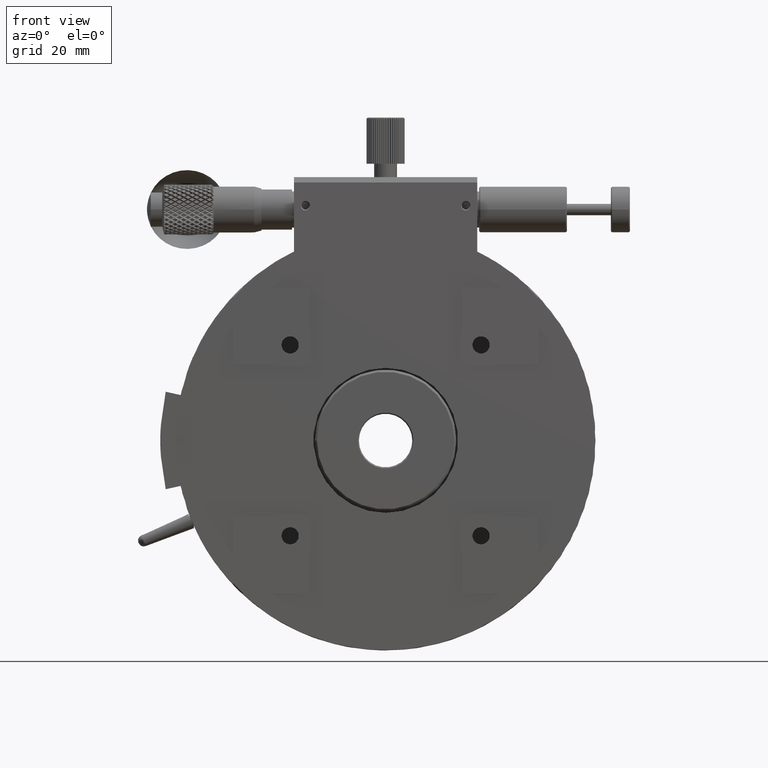
[diagram: clean part render]
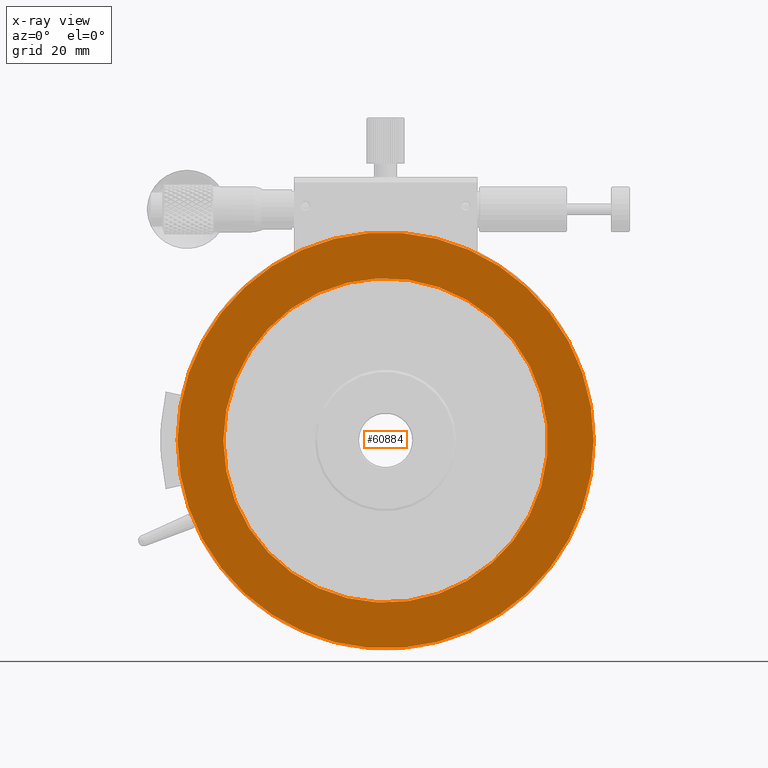
[diagram: x-ray — body ghosted, one internal face saturated and labeled with its STEP entity id]
A machine part, front view, then the same camera in x-ray: the body is ghosted and one INTERNAL B-rep face — a face not visible from any outside direction — is saturated and labeled: STEP entity #60884.
In plain terms, the highlighted planar face has unit normal (0, 1, 0).
Its self-contained STEP definition (entity closure, byte-faithful):
#5047 = DIRECTION ( 'NONE',  ( -1.000000000000000000, 0.000000000000000000, 0.000000000000000000 ) ) ;
#6212 = CARTESIAN_POINT ( 'NONE',  ( 12.49999999999999645, 17.00000000000000000, -55.00000000000000000 ) ) ;
#12397 = ORIENTED_EDGE ( 'NONE', *, *, #69638, .F. ) ;
#14691 = EDGE_CURVE ( 'NONE', #33841, #33841, #35523, .T. ) ;
#15207 = DIRECTION ( 'NONE',  ( 0.000000000000000000, 1.000000000000000000, 0.000000000000000000 ) ) ;
#23349 = DIRECTION ( 'NONE',  ( -0.000000000000000000, -1.000000000000000000, -0.000000000000000000 ) ) ;
#24823 = CARTESIAN_POINT ( 'NONE',  ( 55.00000000000000000, 17.00000000000000000, -97.50000000000000000 ) ) ;
#25278 = FACE_BOUND ( 'NONE', #63520, .T. ) ;
#27862 = CIRCLE ( 'NONE', #52855, 54.50000000000000000 ) ;
#28888 = ORIENTED_EDGE ( 'NONE', *, *, #14691, .F. ) ;
#29776 = CARTESIAN_POINT ( 'NONE',  ( 55.00000000000000000, 17.00000000000000000, -55.00000000000000000 ) ) ;
#31222 = AXIS2_PLACEMENT_3D ( 'NONE', #24823, #82333, #5047 ) ;
#33841 = VERTEX_POINT ( 'NONE', #6212 ) ;
#35523 = CIRCLE ( 'NONE', #51723, 42.50000000000000000 ) ;
#39078 = FACE_OUTER_BOUND ( 'NONE', #42118, .T. ) ;
#42118 = EDGE_LOOP ( 'NONE', ( #12397 ) ) ;
#42359 = DIRECTION ( 'NONE',  ( -1.000000000000000000, 0.000000000000000000, 0.000000000000000000 ) ) ;
#51436 = DIRECTION ( 'NONE',  ( -1.000000000000000000, 0.000000000000000000, 0.000000000000000000 ) ) ;
#51723 = AXIS2_PLACEMENT_3D ( 'NONE', #29776, #23349, #51436 ) ;
#52855 = AXIS2_PLACEMENT_3D ( 'NONE', #77323, #15207, #42359 ) ;
#54748 = PLANE ( 'NONE',  #31222 ) ;
#60884 = ADVANCED_FACE ( 'NONE', ( #25278, #39078 ), #54748, .F. ) ;
#62734 = VERTEX_POINT ( 'NONE', #75164 ) ;
#63520 = EDGE_LOOP ( 'NONE', ( #28888 ) ) ;
#69638 = EDGE_CURVE ( 'NONE', #62734, #62734, #27862, .T. ) ;
#75164 = CARTESIAN_POINT ( 'NONE',  ( 0.5000000000000004441, 17.00000000000000000, -55.00000000000000000 ) ) ;
#77323 = CARTESIAN_POINT ( 'NONE',  ( 55.00000000000000000, 17.00000000000000000, -55.00000000000000000 ) ) ;
#82333 = DIRECTION ( 'NONE',  ( 0.000000000000000000, 1.000000000000000000, 0.000000000000000000 ) ) ;